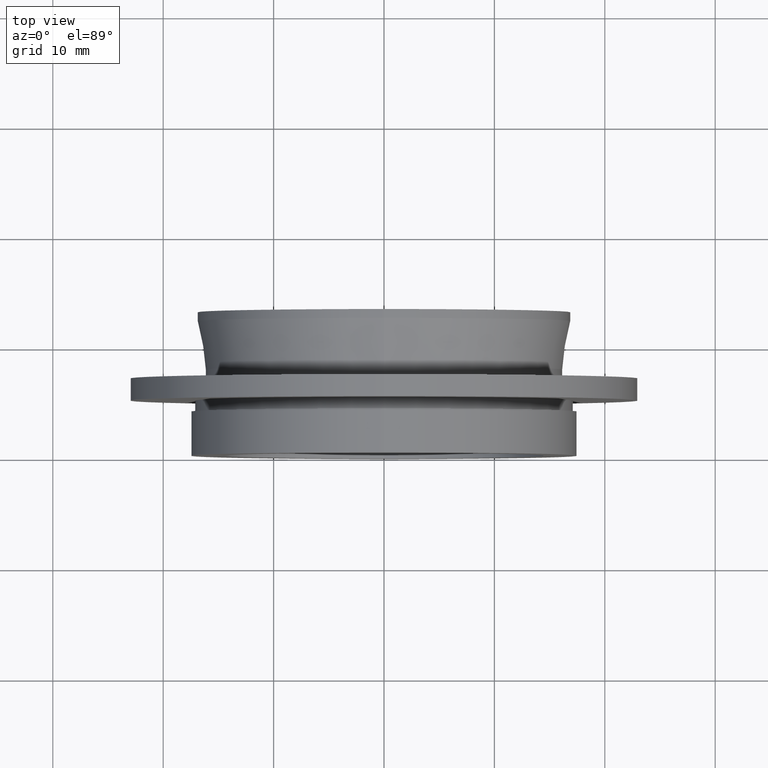
[diagram: clean part render]
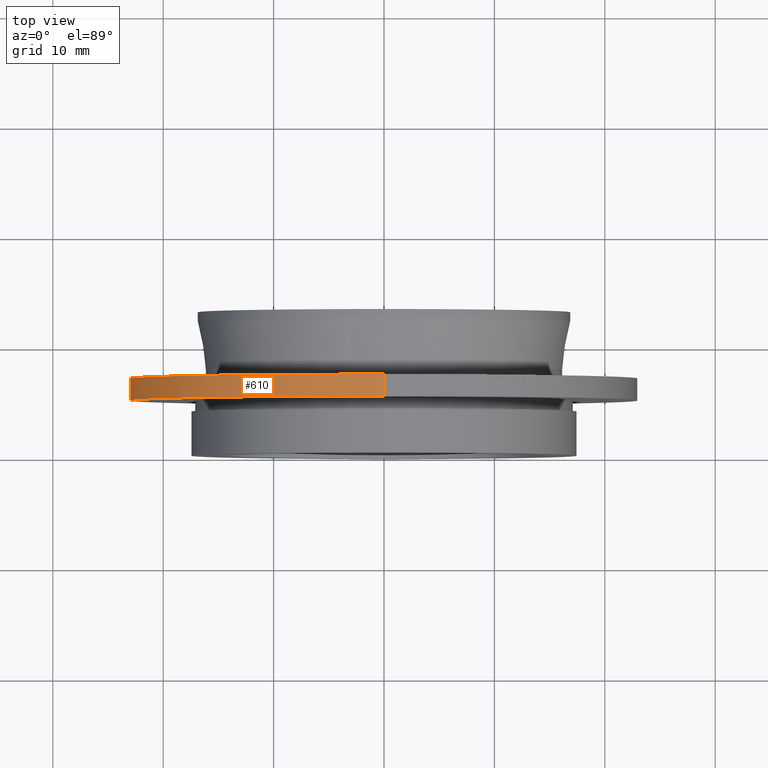
[diagram: same view with one face highlighted and labeled with its STEP entity id]
A machine part, top view. The second image highlights one B-rep face of the part: STEP entity #610.
In plain terms, the highlighted cylindrical surface (partial cylindrical patch) has radius 23 mm, axis along (-0, -1, -0).
Its self-contained STEP definition (entity closure, byte-faithful):
#6 = VECTOR ( 'NONE', #599, 1000.000000000000000 ) ;
#7 = CARTESIAN_POINT ( 'NONE',  ( 0.0000000000000000000, 0.0000000000000000000, 0.0000000000000000000 ) ) ;
#44 = CARTESIAN_POINT ( 'NONE',  ( 2.816687638038912400E-015, 4.999999999999997300, 23.00000000000000000 ) ) ;
#47 = FACE_OUTER_BOUND ( 'NONE', #528, .T. ) ;
#73 = AXIS2_PLACEMENT_3D ( 'NONE', #533, #637, #365 ) ;
#180 = EDGE_CURVE ( 'NONE', #499, #357, #312, .T. ) ;
#235 = ORIENTED_EDGE ( 'NONE', *, *, #526, .F. ) ;
#276 = LINE ( 'NONE', #648, #6 ) ;
#283 = EDGE_CURVE ( 'NONE', #499, #458, #276, .T. ) ;
#312 = CIRCLE ( 'NONE', #73, 23.00000000000000000 ) ;
#345 = DIRECTION ( 'NONE',  ( -0.0000000000000000000, -1.000000000000000000, -0.0000000000000000000 ) ) ;
#346 = DIRECTION ( 'NONE',  ( -0.0000000000000000000, -1.000000000000000000, -0.0000000000000000000 ) ) ;
#351 = DIRECTION ( 'NONE',  ( 0.0000000000000000000, 0.0000000000000000000, -1.000000000000000000 ) ) ;
#357 = VERTEX_POINT ( 'NONE', #486 ) ;
#365 = DIRECTION ( 'NONE',  ( 0.0000000000000000000, 0.0000000000000000000, -1.000000000000000000 ) ) ;
#369 = AXIS2_PLACEMENT_3D ( 'NONE', #7, #345, #351 ) ;
#383 = ORIENTED_EDGE ( 'NONE', *, *, #180, .T. ) ;
#391 = ORIENTED_EDGE ( 'NONE', *, *, #511, .T. ) ;
#405 = CIRCLE ( 'NONE', #627, 23.00000000000000000 ) ;
#413 = LINE ( 'NONE', #452, #664 ) ;
#452 = CARTESIAN_POINT ( 'NONE',  ( 0.0000000000000000000, 0.0000000000000000000, -23.00000000000000000 ) ) ;
#458 = VERTEX_POINT ( 'NONE', #44 ) ;
#460 = CARTESIAN_POINT ( 'NONE',  ( 0.0000000000000000000, 4.999999999999997300, 0.0000000000000000000 ) ) ;
#486 = CARTESIAN_POINT ( 'NONE',  ( 0.0000000000000000000, 6.999999999999997300, -23.00000000000000000 ) ) ;
#499 = VERTEX_POINT ( 'NONE', #570 ) ;
#507 = CYLINDRICAL_SURFACE ( 'NONE', #369, 23.00000000000000000 ) ;
#511 = EDGE_CURVE ( 'NONE', #357, #657, #413, .T. ) ;
#517 = DIRECTION ( 'NONE',  ( -0.0000000000000000000, -1.000000000000000000, -0.0000000000000000000 ) ) ;
#526 = EDGE_CURVE ( 'NONE', #458, #657, #405, .T. ) ;
#528 = EDGE_LOOP ( 'NONE', ( #641, #383, #391, #235 ) ) ;
#533 = CARTESIAN_POINT ( 'NONE',  ( 0.0000000000000000000, 6.999999999999997300, 0.0000000000000000000 ) ) ;
#570 = CARTESIAN_POINT ( 'NONE',  ( 2.816687638038912400E-015, 6.999999999999997300, 23.00000000000000000 ) ) ;
#581 = CARTESIAN_POINT ( 'NONE',  ( 0.0000000000000000000, 4.999999999999997300, -23.00000000000000000 ) ) ;
#599 = DIRECTION ( 'NONE',  ( -0.0000000000000000000, -1.000000000000000000, -0.0000000000000000000 ) ) ;
#610 = ADVANCED_FACE ( 'NONE', ( #47 ), #507, .T. ) ;
#611 = DIRECTION ( 'NONE',  ( 0.0000000000000000000, 0.0000000000000000000, -1.000000000000000000 ) ) ;
#627 = AXIS2_PLACEMENT_3D ( 'NONE', #460, #517, #611 ) ;
#637 = DIRECTION ( 'NONE',  ( -0.0000000000000000000, -1.000000000000000000, -0.0000000000000000000 ) ) ;
#641 = ORIENTED_EDGE ( 'NONE', *, *, #283, .F. ) ;
#648 = CARTESIAN_POINT ( 'NONE',  ( 2.816687638038912400E-015, 0.0000000000000000000, 23.00000000000000000 ) ) ;
#657 = VERTEX_POINT ( 'NONE', #581 ) ;
#664 = VECTOR ( 'NONE', #346, 1000.000000000000000 ) ;